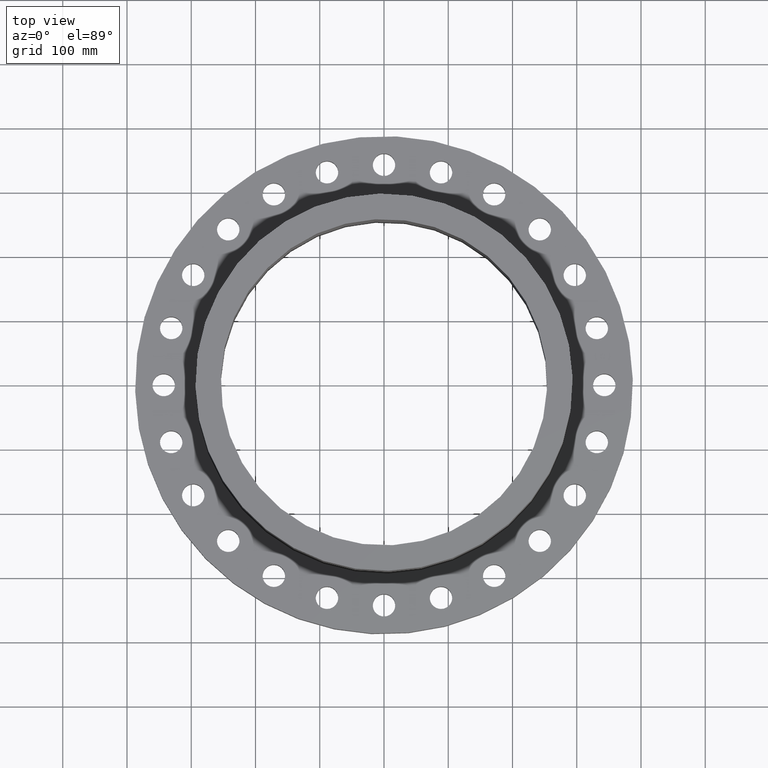
[diagram: clean part render]
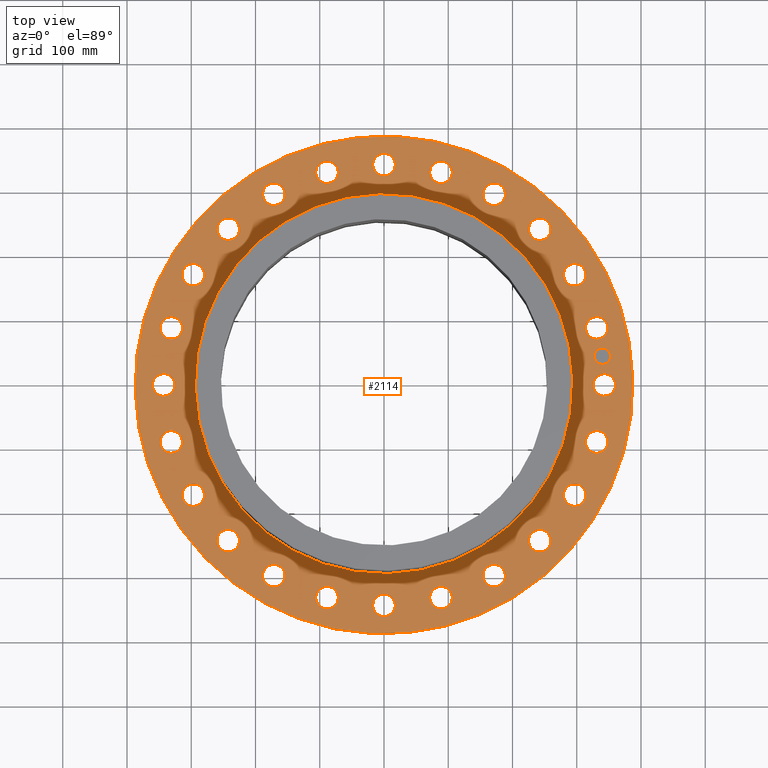
[diagram: same view with one face highlighted and labeled with its STEP entity id]
A machine part, top view. The second image highlights one B-rep face of the part: STEP entity #2114.
In plain terms, the highlighted planar face has unit normal (0, 0, -1).
Its self-contained STEP definition (entity closure, byte-faithful):
#51=AXIS2_PLACEMENT_3D('Circle Axis2P3D',#49,#50,$) ;
#542=AXIS2_PLACEMENT_3D('Circle Axis2P3D',#540,#541,$) ;
#566=AXIS2_PLACEMENT_3D('Circle Axis2P3D',#564,#565,$) ;
#585=AXIS2_PLACEMENT_3D('Circle Axis2P3D',#583,#584,$) ;
#602=AXIS2_PLACEMENT_3D('Circle Axis2P3D',#600,#601,$) ;
#637=AXIS2_PLACEMENT_3D('Circle Axis2P3D',#635,#636,$) ;
#1012=AXIS2_PLACEMENT_3D('Circle Axis2P3D',#1010,#1011,$) ;
#1031=AXIS2_PLACEMENT_3D('Circle Axis2P3D',#1029,#1030,$) ;
#1055=AXIS2_PLACEMENT_3D('Circle Axis2P3D',#1053,#1054,$) ;
#1074=AXIS2_PLACEMENT_3D('Circle Axis2P3D',#1072,#1073,$) ;
#1098=AXIS2_PLACEMENT_3D('Circle Axis2P3D',#1096,#1097,$) ;
#1117=AXIS2_PLACEMENT_3D('Circle Axis2P3D',#1115,#1116,$) ;
#1141=AXIS2_PLACEMENT_3D('Circle Axis2P3D',#1139,#1140,$) ;
#1160=AXIS2_PLACEMENT_3D('Circle Axis2P3D',#1158,#1159,$) ;
#1184=AXIS2_PLACEMENT_3D('Circle Axis2P3D',#1182,#1183,$) ;
#1203=AXIS2_PLACEMENT_3D('Circle Axis2P3D',#1201,#1202,$) ;
#1227=AXIS2_PLACEMENT_3D('Circle Axis2P3D',#1225,#1226,$) ;
#1246=AXIS2_PLACEMENT_3D('Circle Axis2P3D',#1244,#1245,$) ;
#1270=AXIS2_PLACEMENT_3D('Circle Axis2P3D',#1268,#1269,$) ;
#1289=AXIS2_PLACEMENT_3D('Circle Axis2P3D',#1287,#1288,$) ;
#1313=AXIS2_PLACEMENT_3D('Circle Axis2P3D',#1311,#1312,$) ;
#1332=AXIS2_PLACEMENT_3D('Circle Axis2P3D',#1330,#1331,$) ;
#1356=AXIS2_PLACEMENT_3D('Circle Axis2P3D',#1354,#1355,$) ;
#1375=AXIS2_PLACEMENT_3D('Circle Axis2P3D',#1373,#1374,$) ;
#1399=AXIS2_PLACEMENT_3D('Circle Axis2P3D',#1397,#1398,$) ;
#1418=AXIS2_PLACEMENT_3D('Circle Axis2P3D',#1416,#1417,$) ;
#1442=AXIS2_PLACEMENT_3D('Circle Axis2P3D',#1440,#1441,$) ;
#1461=AXIS2_PLACEMENT_3D('Circle Axis2P3D',#1459,#1460,$) ;
#1485=AXIS2_PLACEMENT_3D('Circle Axis2P3D',#1483,#1484,$) ;
#1504=AXIS2_PLACEMENT_3D('Circle Axis2P3D',#1502,#1503,$) ;
#1528=AXIS2_PLACEMENT_3D('Circle Axis2P3D',#1526,#1527,$) ;
#1547=AXIS2_PLACEMENT_3D('Circle Axis2P3D',#1545,#1546,$) ;
#1571=AXIS2_PLACEMENT_3D('Circle Axis2P3D',#1569,#1570,$) ;
#1590=AXIS2_PLACEMENT_3D('Circle Axis2P3D',#1588,#1589,$) ;
#1614=AXIS2_PLACEMENT_3D('Circle Axis2P3D',#1612,#1613,$) ;
#1633=AXIS2_PLACEMENT_3D('Circle Axis2P3D',#1631,#1632,$) ;
#1657=AXIS2_PLACEMENT_3D('Circle Axis2P3D',#1655,#1656,$) ;
#1676=AXIS2_PLACEMENT_3D('Circle Axis2P3D',#1674,#1675,$) ;
#1700=AXIS2_PLACEMENT_3D('Circle Axis2P3D',#1698,#1699,$) ;
#1719=AXIS2_PLACEMENT_3D('Circle Axis2P3D',#1717,#1718,$) ;
#1743=AXIS2_PLACEMENT_3D('Circle Axis2P3D',#1741,#1742,$) ;
#1762=AXIS2_PLACEMENT_3D('Circle Axis2P3D',#1760,#1761,$) ;
#1786=AXIS2_PLACEMENT_3D('Circle Axis2P3D',#1784,#1785,$) ;
#1805=AXIS2_PLACEMENT_3D('Circle Axis2P3D',#1803,#1804,$) ;
#1829=AXIS2_PLACEMENT_3D('Circle Axis2P3D',#1827,#1828,$) ;
#1848=AXIS2_PLACEMENT_3D('Circle Axis2P3D',#1846,#1847,$) ;
#1872=AXIS2_PLACEMENT_3D('Circle Axis2P3D',#1870,#1871,$) ;
#1891=AXIS2_PLACEMENT_3D('Circle Axis2P3D',#1889,#1890,$) ;
#1915=AXIS2_PLACEMENT_3D('Circle Axis2P3D',#1913,#1914,$) ;
#1934=AXIS2_PLACEMENT_3D('Circle Axis2P3D',#1932,#1933,$) ;
#1958=AXIS2_PLACEMENT_3D('Circle Axis2P3D',#1956,#1957,$) ;
#1977=AXIS2_PLACEMENT_3D('Circle Axis2P3D',#1975,#1976,$) ;
#1990=AXIS2_PLACEMENT_3D('Plane Axis2P3D',#1987,#1988,#1989) ;
#2098=AXIS2_PLACEMENT_3D('Circle Axis2P3D',#2096,#2097,$) ;
#2107=AXIS2_PLACEMENT_3D('Circle Axis2P3D',#2105,#2106,$) ;
#44=CARTESIAN_POINT('Vertex',(12.8944680323,-0.330803621638,2.43750000001)) ;
#49=CARTESIAN_POINT('Axis2P3D Location',(13.5000000001,0.,2.43750000001)) ;
#53=CARTESIAN_POINT('Vertex',(14.1055319678,0.330803621638,2.43750000001)) ;
#540=CARTESIAN_POINT('Axis2P3D Location',(13.5000000001,0.,2.43750000001)) ;
#561=CARTESIAN_POINT('Vertex',(-7.31123946374,-13.3831340689,2.43750000001)) ;
#564=CARTESIAN_POINT('Axis2P3D Location',(0.,0.,2.43750000001)) ;
#568=CARTESIAN_POINT('Vertex',(7.31123946374,13.3831340689,2.43750000001)) ;
#583=CARTESIAN_POINT('Axis2P3D Location',(0.,0.,2.43750000001)) ;
#600=CARTESIAN_POINT('Axis2P3D Location',(0.,0.,2.43750000001)) ;
#604=CARTESIAN_POINT('Vertex',(5.54215922629,10.1448544155,2.43750000001)) ;
#606=CARTESIAN_POINT('Vertex',(-5.54215922629,-10.1448544155,2.43750000001)) ;
#635=CARTESIAN_POINT('Axis2P3D Location',(0.,0.,2.43750000001)) ;
#1007=CARTESIAN_POINT('Vertex',(12.3694814112,-3.65686566481,2.43750000001)) ;
#1010=CARTESIAN_POINT('Axis2P3D Location',(13.039998655,-3.4940571089,2.43750000001)) ;
#1014=CARTESIAN_POINT('Vertex',(13.7105158987,-3.33124855299,2.43750000001)) ;
#1029=CARTESIAN_POINT('Axis2P3D Location',(13.039998655,-3.4940571089,2.43750000001)) ;
#1050=CARTESIAN_POINT('Vertex',(11.0015350735,-6.73371835618,2.43750000001)) ;
#1053=CARTESIAN_POINT('Axis2P3D Location',(11.6913429511,-6.75000000003,2.43750000001)) ;
#1057=CARTESIAN_POINT('Vertex',(12.3811508288,-6.76628164388,2.43750000001)) ;
#1072=CARTESIAN_POINT('Axis2P3D Location',(11.6913429511,-6.75000000003,2.43750000001)) ;
#1093=CARTESIAN_POINT('Vertex',(8.88385230136,-9.35167926957,2.43750000001)) ;
#1096=CARTESIAN_POINT('Axis2P3D Location',(9.54594154606,-9.54594154606,2.43750000001)) ;
#1100=CARTESIAN_POINT('Vertex',(10.2080307907,-9.74020382255,2.43750000001)) ;
#1115=CARTESIAN_POINT('Axis2P3D Location',(9.54594154606,-9.54594154606,2.43750000001)) ;
#1136=CARTESIAN_POINT('Vertex',(6.16074967617,-11.3323386951,2.43750000001)) ;
#1139=CARTESIAN_POINT('Axis2P3D Location',(6.75000000003,-11.6913429511,2.43750000001)) ;
#1143=CARTESIAN_POINT('Vertex',(7.33925032388,-12.0503472072,2.43750000001)) ;
#1158=CARTESIAN_POINT('Axis2P3D Location',(6.75000000003,-11.6913429511,2.43750000001)) ;
#1179=CARTESIAN_POINT('Vertex',(3.01780214167,-12.5407179662,2.43750000001)) ;
#1182=CARTESIAN_POINT('Axis2P3D Location',(3.4940571089,-13.039998655,2.43750000001)) ;
#1186=CARTESIAN_POINT('Vertex',(3.97031207613,-13.5392793437,2.43750000001)) ;
#1201=CARTESIAN_POINT('Axis2P3D Location',(3.4940571089,-13.039998655,2.43750000001)) ;
#1222=CARTESIAN_POINT('Vertex',(-0.330803621638,-12.8944680323,2.43750000001)) ;
#1225=CARTESIAN_POINT('Axis2P3D Location',(-1.41129328698E-015,-13.5000000001,2.43750000001)) ;
#1229=CARTESIAN_POINT('Vertex',(0.330803621638,-14.1055319678,2.43750000001)) ;
#1244=CARTESIAN_POINT('Axis2P3D Location',(-1.41129328698E-015,-13.5000000001,2.43750000001)) ;
#1265=CARTESIAN_POINT('Vertex',(-3.65686566481,-12.3694814112,2.43750000001)) ;
#1268=CARTESIAN_POINT('Axis2P3D Location',(-3.4940571089,-13.039998655,2.43750000001)) ;
#1272=CARTESIAN_POINT('Vertex',(-3.33124855299,-13.7105158987,2.43750000001)) ;
#1287=CARTESIAN_POINT('Axis2P3D Location',(-3.4940571089,-13.039998655,2.43750000001)) ;
#1308=CARTESIAN_POINT('Vertex',(-6.73371835618,-11.0015350735,2.43750000001)) ;
#1311=CARTESIAN_POINT('Axis2P3D Location',(-6.75000000003,-11.6913429511,2.43750000001)) ;
#1315=CARTESIAN_POINT('Vertex',(-6.76628164388,-12.3811508288,2.43750000001)) ;
#1330=CARTESIAN_POINT('Axis2P3D Location',(-6.75000000003,-11.6913429511,2.43750000001)) ;
#1351=CARTESIAN_POINT('Vertex',(-9.35167926957,-8.88385230136,2.43750000001)) ;
#1354=CARTESIAN_POINT('Axis2P3D Location',(-9.54594154606,-9.54594154606,2.43750000001)) ;
#1358=CARTESIAN_POINT('Vertex',(-9.74020382255,-10.2080307907,2.43750000001)) ;
#1373=CARTESIAN_POINT('Axis2P3D Location',(-9.54594154606,-9.54594154606,2.43750000001)) ;
#1394=CARTESIAN_POINT('Vertex',(-11.3323386951,-6.16074967617,2.43750000001)) ;
#1397=CARTESIAN_POINT('Axis2P3D Location',(-11.6913429511,-6.75000000003,2.43750000001)) ;
#1401=CARTESIAN_POINT('Vertex',(-12.0503472072,-7.33925032388,2.43750000001)) ;
#1416=CARTESIAN_POINT('Axis2P3D Location',(-11.6913429511,-6.75000000003,2.43750000001)) ;
#1437=CARTESIAN_POINT('Vertex',(-12.5407179662,-3.01780214167,2.43750000001)) ;
#1440=CARTESIAN_POINT('Axis2P3D Location',(-13.039998655,-3.4940571089,2.43750000001)) ;
#1444=CARTESIAN_POINT('Vertex',(-13.5392793437,-3.97031207613,2.43750000001)) ;
#1459=CARTESIAN_POINT('Axis2P3D Location',(-13.039998655,-3.4940571089,2.43750000001)) ;
#1480=CARTESIAN_POINT('Vertex',(-12.8944680323,0.330803621638,2.43750000001)) ;
#1483=CARTESIAN_POINT('Axis2P3D Location',(-13.5000000001,-1.65327317886E-015,2.43750000001)) ;
#1487=CARTESIAN_POINT('Vertex',(-14.1055319678,-0.330803621638,2.43750000001)) ;
#1502=CARTESIAN_POINT('Axis2P3D Location',(-13.5000000001,-1.65327317886E-015,2.43750000001)) ;
#1523=CARTESIAN_POINT('Vertex',(-12.3694814112,3.65686566481,2.43750000001)) ;
#1526=CARTESIAN_POINT('Axis2P3D Location',(-13.039998655,3.4940571089,2.43750000001)) ;
#1530=CARTESIAN_POINT('Vertex',(-13.7105158987,3.33124855299,2.43750000001)) ;
#1545=CARTESIAN_POINT('Axis2P3D Location',(-13.039998655,3.4940571089,2.43750000001)) ;
#1566=CARTESIAN_POINT('Vertex',(-11.0015350735,6.73371835618,2.43750000001)) ;
#1569=CARTESIAN_POINT('Axis2P3D Location',(-11.6913429511,6.75000000003,2.43750000001)) ;
#1573=CARTESIAN_POINT('Vertex',(-12.3811508288,6.76628164388,2.43750000001)) ;
#1588=CARTESIAN_POINT('Axis2P3D Location',(-11.6913429511,6.75000000003,2.43750000001)) ;
#1609=CARTESIAN_POINT('Vertex',(-8.88385230136,9.35167926957,2.43750000001)) ;
#1612=CARTESIAN_POINT('Axis2P3D Location',(-9.54594154606,9.54594154606,2.43750000001)) ;
#1616=CARTESIAN_POINT('Vertex',(-10.2080307907,9.74020382255,2.43750000001)) ;
#1631=CARTESIAN_POINT('Axis2P3D Location',(-9.54594154606,9.54594154606,2.43750000001)) ;
#1652=CARTESIAN_POINT('Vertex',(-6.16074967617,11.3323386951,2.43750000001)) ;
#1655=CARTESIAN_POINT('Axis2P3D Location',(-6.75000000003,11.6913429511,2.43750000001)) ;
#1659=CARTESIAN_POINT('Vertex',(-7.33925032388,12.0503472072,2.43750000001)) ;
#1674=CARTESIAN_POINT('Axis2P3D Location',(-6.75000000003,11.6913429511,2.43750000001)) ;
#1695=CARTESIAN_POINT('Vertex',(-3.01780214167,12.5407179662,2.43750000001)) ;
#1698=CARTESIAN_POINT('Axis2P3D Location',(-3.4940571089,13.039998655,2.43750000001)) ;
#1702=CARTESIAN_POINT('Vertex',(-3.97031207613,13.5392793437,2.43750000001)) ;
#1717=CARTESIAN_POINT('Axis2P3D Location',(-3.4940571089,13.039998655,2.43750000001)) ;
#1738=CARTESIAN_POINT('Vertex',(0.330803621638,12.8944680323,2.43750000001)) ;
#1741=CARTESIAN_POINT('Axis2P3D Location',(-2.47990976828E-015,13.5000000001,2.43750000001)) ;
#1745=CARTESIAN_POINT('Vertex',(-0.330803621638,14.1055319678,2.43750000001)) ;
#1760=CARTESIAN_POINT('Axis2P3D Location',(-2.47990976828E-015,13.5000000001,2.43750000001)) ;
#1781=CARTESIAN_POINT('Vertex',(3.65686566481,12.3694814112,2.43750000001)) ;
#1784=CARTESIAN_POINT('Axis2P3D Location',(3.4940571089,13.039998655,2.43750000001)) ;
#1788=CARTESIAN_POINT('Vertex',(3.33124855299,13.7105158987,2.43750000001)) ;
#1803=CARTESIAN_POINT('Axis2P3D Location',(3.4940571089,13.039998655,2.43750000001)) ;
#1824=CARTESIAN_POINT('Vertex',(6.73371835618,11.0015350735,2.43750000001)) ;
#1827=CARTESIAN_POINT('Axis2P3D Location',(6.75000000003,11.6913429511,2.43750000001)) ;
#1831=CARTESIAN_POINT('Vertex',(6.76628164388,12.3811508288,2.43750000001)) ;
#1846=CARTESIAN_POINT('Axis2P3D Location',(6.75000000003,11.6913429511,2.43750000001)) ;
#1867=CARTESIAN_POINT('Vertex',(9.35167926957,8.88385230136,2.43750000001)) ;
#1870=CARTESIAN_POINT('Axis2P3D Location',(9.54594154606,9.54594154606,2.43750000001)) ;
#1874=CARTESIAN_POINT('Vertex',(9.74020382255,10.2080307907,2.43750000001)) ;
#1889=CARTESIAN_POINT('Axis2P3D Location',(9.54594154606,9.54594154606,2.43750000001)) ;
#1910=CARTESIAN_POINT('Vertex',(11.3323386951,6.16074967617,2.43750000001)) ;
#1913=CARTESIAN_POINT('Axis2P3D Location',(11.6913429511,6.75000000003,2.43750000001)) ;
#1917=CARTESIAN_POINT('Vertex',(12.0503472072,7.33925032388,2.43750000001)) ;
#1932=CARTESIAN_POINT('Axis2P3D Location',(11.6913429511,6.75000000003,2.43750000001)) ;
#1953=CARTESIAN_POINT('Vertex',(12.5407179662,3.01780214167,2.43750000001)) ;
#1956=CARTESIAN_POINT('Axis2P3D Location',(13.039998655,3.4940571089,2.43750000001)) ;
#1960=CARTESIAN_POINT('Vertex',(13.5392793437,3.97031207613,2.43750000001)) ;
#1975=CARTESIAN_POINT('Axis2P3D Location',(13.039998655,3.4940571089,2.43750000001)) ;
#1987=CARTESIAN_POINT('Axis2P3D Location',(0.,15.2500000001,2.43750000001)) ;
#2096=CARTESIAN_POINT('Axis2P3D Location',(13.3845056286,1.76210359498,2.43750000001)) ;
#2100=CARTESIAN_POINT('Vertex',(13.4497687241,1.26638116925,2.43750000001)) ;
#2102=CARTESIAN_POINT('Vertex',(13.3192425331,2.25782602071,2.43750000001)) ;
#2105=CARTESIAN_POINT('Axis2P3D Location',(13.3845056286,1.76210359498,2.43750000001)) ;
#50=DIRECTION('Axis2P3D Direction',(0.,-0.,0.0393700787402)) ;
#541=DIRECTION('Axis2P3D Direction',(0.,-0.,0.0393700787402)) ;
#565=DIRECTION('Axis2P3D Direction',(0.,0.,-0.0393700787402)) ;
#584=DIRECTION('Axis2P3D Direction',(0.,0.,-0.0393700787402)) ;
#601=DIRECTION('Axis2P3D Direction',(0.,0.,-0.0393700787402)) ;
#636=DIRECTION('Axis2P3D Direction',(0.,0.,-0.0393700787402)) ;
#1011=DIRECTION('Axis2P3D Direction',(-0.,0.,0.0393700787402)) ;
#1030=DIRECTION('Axis2P3D Direction',(-0.,0.,0.0393700787402)) ;
#1054=DIRECTION('Axis2P3D Direction',(-0.,0.,0.0393700787402)) ;
#1073=DIRECTION('Axis2P3D Direction',(-0.,0.,0.0393700787402)) ;
#1097=DIRECTION('Axis2P3D Direction',(-0.,0.,0.0393700787402)) ;
#1116=DIRECTION('Axis2P3D Direction',(-0.,0.,0.0393700787402)) ;
#1140=DIRECTION('Axis2P3D Direction',(-0.,0.,0.0393700787402)) ;
#1159=DIRECTION('Axis2P3D Direction',(-0.,0.,0.0393700787402)) ;
#1183=DIRECTION('Axis2P3D Direction',(-0.,0.,0.0393700787402)) ;
#1202=DIRECTION('Axis2P3D Direction',(-0.,0.,0.0393700787402)) ;
#1226=DIRECTION('Axis2P3D Direction',(-0.,0.,0.0393700787402)) ;
#1245=DIRECTION('Axis2P3D Direction',(-0.,0.,0.0393700787402)) ;
#1269=DIRECTION('Axis2P3D Direction',(0.,0.,0.0393700787402)) ;
#1288=DIRECTION('Axis2P3D Direction',(0.,0.,0.0393700787402)) ;
#1312=DIRECTION('Axis2P3D Direction',(0.,0.,0.0393700787402)) ;
#1331=DIRECTION('Axis2P3D Direction',(0.,0.,0.0393700787402)) ;
#1355=DIRECTION('Axis2P3D Direction',(0.,0.,0.0393700787402)) ;
#1374=DIRECTION('Axis2P3D Direction',(0.,0.,0.0393700787402)) ;
#1398=DIRECTION('Axis2P3D Direction',(0.,0.,0.0393700787402)) ;
#1417=DIRECTION('Axis2P3D Direction',(0.,0.,0.0393700787402)) ;
#1441=DIRECTION('Axis2P3D Direction',(0.,0.,0.0393700787402)) ;
#1460=DIRECTION('Axis2P3D Direction',(0.,0.,0.0393700787402)) ;
#1484=DIRECTION('Axis2P3D Direction',(0.,0.,0.0393700787402)) ;
#1503=DIRECTION('Axis2P3D Direction',(0.,0.,0.0393700787402)) ;
#1527=DIRECTION('Axis2P3D Direction',(0.,0.,0.0393700787402)) ;
#1546=DIRECTION('Axis2P3D Direction',(0.,0.,0.0393700787402)) ;
#1570=DIRECTION('Axis2P3D Direction',(0.,0.,0.0393700787402)) ;
#1589=DIRECTION('Axis2P3D Direction',(0.,0.,0.0393700787402)) ;
#1613=DIRECTION('Axis2P3D Direction',(0.,0.,0.0393700787402)) ;
#1632=DIRECTION('Axis2P3D Direction',(0.,0.,0.0393700787402)) ;
#1656=DIRECTION('Axis2P3D Direction',(0.,0.,0.0393700787402)) ;
#1675=DIRECTION('Axis2P3D Direction',(0.,0.,0.0393700787402)) ;
#1699=DIRECTION('Axis2P3D Direction',(0.,0.,0.0393700787402)) ;
#1718=DIRECTION('Axis2P3D Direction',(0.,0.,0.0393700787402)) ;
#1742=DIRECTION('Axis2P3D Direction',(0.,0.,0.0393700787402)) ;
#1761=DIRECTION('Axis2P3D Direction',(0.,0.,0.0393700787402)) ;
#1785=DIRECTION('Axis2P3D Direction',(0.,-0.,0.0393700787402)) ;
#1804=DIRECTION('Axis2P3D Direction',(0.,-0.,0.0393700787402)) ;
#1828=DIRECTION('Axis2P3D Direction',(0.,-0.,0.0393700787402)) ;
#1847=DIRECTION('Axis2P3D Direction',(0.,-0.,0.0393700787402)) ;
#1871=DIRECTION('Axis2P3D Direction',(0.,-0.,0.0393700787402)) ;
#1890=DIRECTION('Axis2P3D Direction',(0.,-0.,0.0393700787402)) ;
#1914=DIRECTION('Axis2P3D Direction',(0.,-0.,0.0393700787402)) ;
#1933=DIRECTION('Axis2P3D Direction',(0.,-0.,0.0393700787402)) ;
#1957=DIRECTION('Axis2P3D Direction',(0.,-0.,0.0393700787402)) ;
#1976=DIRECTION('Axis2P3D Direction',(0.,-0.,0.0393700787402)) ;
#1988=DIRECTION('Axis2P3D Direction',(0.,0.,-0.0393700787402)) ;
#1989=DIRECTION('Axis2P3D XDirection',(0.0393700787402,0.,0.)) ;
#2097=DIRECTION('Axis2P3D Direction',(0.,0.,-0.0393700787402)) ;
#2106=DIRECTION('Axis2P3D Direction',(0.,0.,-0.0393700787402)) ;
#1993=ORIENTED_EDGE('',*,*,#587,.F.) ;
#1994=ORIENTED_EDGE('',*,*,#570,.F.) ;
#1997=ORIENTED_EDGE('',*,*,#55,.T.) ;
#1998=ORIENTED_EDGE('',*,*,#544,.T.) ;
#2001=ORIENTED_EDGE('',*,*,#639,.T.) ;
#2002=ORIENTED_EDGE('',*,*,#608,.T.) ;
#2005=ORIENTED_EDGE('',*,*,#1033,.T.) ;
#2006=ORIENTED_EDGE('',*,*,#1016,.T.) ;
#2009=ORIENTED_EDGE('',*,*,#1076,.T.) ;
#2010=ORIENTED_EDGE('',*,*,#1059,.T.) ;
#2013=ORIENTED_EDGE('',*,*,#1119,.T.) ;
#2014=ORIENTED_EDGE('',*,*,#1102,.T.) ;
#2017=ORIENTED_EDGE('',*,*,#1162,.T.) ;
#2018=ORIENTED_EDGE('',*,*,#1145,.T.) ;
#2021=ORIENTED_EDGE('',*,*,#1205,.T.) ;
#2022=ORIENTED_EDGE('',*,*,#1188,.T.) ;
#2025=ORIENTED_EDGE('',*,*,#1248,.T.) ;
#2026=ORIENTED_EDGE('',*,*,#1231,.T.) ;
#2029=ORIENTED_EDGE('',*,*,#1291,.T.) ;
#2030=ORIENTED_EDGE('',*,*,#1274,.T.) ;
#2033=ORIENTED_EDGE('',*,*,#1334,.T.) ;
#2034=ORIENTED_EDGE('',*,*,#1317,.T.) ;
#2037=ORIENTED_EDGE('',*,*,#1377,.T.) ;
#2038=ORIENTED_EDGE('',*,*,#1360,.T.) ;
#2041=ORIENTED_EDGE('',*,*,#1420,.T.) ;
#2042=ORIENTED_EDGE('',*,*,#1403,.T.) ;
#2045=ORIENTED_EDGE('',*,*,#1463,.T.) ;
#2046=ORIENTED_EDGE('',*,*,#1446,.T.) ;
#2049=ORIENTED_EDGE('',*,*,#1506,.T.) ;
#2050=ORIENTED_EDGE('',*,*,#1489,.T.) ;
#2053=ORIENTED_EDGE('',*,*,#1549,.T.) ;
#2054=ORIENTED_EDGE('',*,*,#1532,.T.) ;
#2057=ORIENTED_EDGE('',*,*,#1592,.T.) ;
#2058=ORIENTED_EDGE('',*,*,#1575,.T.) ;
#2061=ORIENTED_EDGE('',*,*,#1635,.T.) ;
#2062=ORIENTED_EDGE('',*,*,#1618,.T.) ;
#2065=ORIENTED_EDGE('',*,*,#1678,.T.) ;
#2066=ORIENTED_EDGE('',*,*,#1661,.T.) ;
#2069=ORIENTED_EDGE('',*,*,#1721,.T.) ;
#2070=ORIENTED_EDGE('',*,*,#1704,.T.) ;
#2073=ORIENTED_EDGE('',*,*,#1764,.T.) ;
#2074=ORIENTED_EDGE('',*,*,#1747,.T.) ;
#2077=ORIENTED_EDGE('',*,*,#1807,.T.) ;
#2078=ORIENTED_EDGE('',*,*,#1790,.T.) ;
#2081=ORIENTED_EDGE('',*,*,#1850,.T.) ;
#2082=ORIENTED_EDGE('',*,*,#1833,.T.) ;
#2085=ORIENTED_EDGE('',*,*,#1893,.T.) ;
#2086=ORIENTED_EDGE('',*,*,#1876,.T.) ;
#2089=ORIENTED_EDGE('',*,*,#1936,.T.) ;
#2090=ORIENTED_EDGE('',*,*,#1919,.T.) ;
#2093=ORIENTED_EDGE('',*,*,#1979,.T.) ;
#2094=ORIENTED_EDGE('',*,*,#1962,.T.) ;
#2111=ORIENTED_EDGE('',*,*,#2104,.F.) ;
#2112=ORIENTED_EDGE('',*,*,#2109,.F.) ;
#1999=FACE_BOUND('',#1996,.T.) ;
#2003=FACE_BOUND('',#2000,.T.) ;
#2007=FACE_BOUND('',#2004,.T.) ;
#2011=FACE_BOUND('',#2008,.T.) ;
#2015=FACE_BOUND('',#2012,.T.) ;
#2019=FACE_BOUND('',#2016,.T.) ;
#2023=FACE_BOUND('',#2020,.T.) ;
#2027=FACE_BOUND('',#2024,.T.) ;
#2031=FACE_BOUND('',#2028,.T.) ;
#2035=FACE_BOUND('',#2032,.T.) ;
#2039=FACE_BOUND('',#2036,.T.) ;
#2043=FACE_BOUND('',#2040,.T.) ;
#2047=FACE_BOUND('',#2044,.T.) ;
#2051=FACE_BOUND('',#2048,.T.) ;
#2055=FACE_BOUND('',#2052,.T.) ;
#2059=FACE_BOUND('',#2056,.T.) ;
#2063=FACE_BOUND('',#2060,.T.) ;
#2067=FACE_BOUND('',#2064,.T.) ;
#2071=FACE_BOUND('',#2068,.T.) ;
#2075=FACE_BOUND('',#2072,.T.) ;
#2079=FACE_BOUND('',#2076,.T.) ;
#2083=FACE_BOUND('',#2080,.T.) ;
#2087=FACE_BOUND('',#2084,.T.) ;
#2091=FACE_BOUND('',#2088,.T.) ;
#2095=FACE_BOUND('',#2092,.T.) ;
#2113=FACE_BOUND('',#2110,.T.) ;
#2114=ADVANCED_FACE('PartBody',(#1995,#1999,#2003,#2007,#2011,#2015,#2019,#2023,#2027,#2031,#2035,#2039,#2043,#2047,#2051,#2055,#2059,#2063,#2067,#2071,#2075,#2079,#2083,#2087,#2091,#2095,#2113),#1991,.F.) ;
#52=CIRCLE('generated circle',#51,0.690000000003) ;
#543=CIRCLE('generated circle',#542,0.690000000003) ;
#567=CIRCLE('generated circle',#566,15.2500000001) ;
#586=CIRCLE('generated circle',#585,15.2500000001) ;
#603=CIRCLE('generated circle',#602,11.56) ;
#638=CIRCLE('generated circle',#637,11.56) ;
#1013=CIRCLE('generated circle',#1012,0.690000000003) ;
#1032=CIRCLE('generated circle',#1031,0.690000000003) ;
#1056=CIRCLE('generated circle',#1055,0.690000000003) ;
#1075=CIRCLE('generated circle',#1074,0.690000000003) ;
#1099=CIRCLE('generated circle',#1098,0.690000000003) ;
#1118=CIRCLE('generated circle',#1117,0.690000000003) ;
#1142=CIRCLE('generated circle',#1141,0.690000000003) ;
#1161=CIRCLE('generated circle',#1160,0.690000000003) ;
#1185=CIRCLE('generated circle',#1184,0.690000000003) ;
#1204=CIRCLE('generated circle',#1203,0.690000000003) ;
#1228=CIRCLE('generated circle',#1227,0.690000000003) ;
#1247=CIRCLE('generated circle',#1246,0.690000000003) ;
#1271=CIRCLE('generated circle',#1270,0.690000000003) ;
#1290=CIRCLE('generated circle',#1289,0.690000000003) ;
#1314=CIRCLE('generated circle',#1313,0.690000000003) ;
#1333=CIRCLE('generated circle',#1332,0.690000000003) ;
#1357=CIRCLE('generated circle',#1356,0.690000000003) ;
#1376=CIRCLE('generated circle',#1375,0.690000000003) ;
#1400=CIRCLE('generated circle',#1399,0.690000000003) ;
#1419=CIRCLE('generated circle',#1418,0.690000000003) ;
#1443=CIRCLE('generated circle',#1442,0.690000000003) ;
#1462=CIRCLE('generated circle',#1461,0.690000000003) ;
#1486=CIRCLE('generated circle',#1485,0.690000000003) ;
#1505=CIRCLE('generated circle',#1504,0.690000000003) ;
#1529=CIRCLE('generated circle',#1528,0.690000000003) ;
#1548=CIRCLE('generated circle',#1547,0.690000000003) ;
#1572=CIRCLE('generated circle',#1571,0.690000000003) ;
#1591=CIRCLE('generated circle',#1590,0.690000000003) ;
#1615=CIRCLE('generated circle',#1614,0.690000000003) ;
#1634=CIRCLE('generated circle',#1633,0.690000000003) ;
#1658=CIRCLE('generated circle',#1657,0.690000000003) ;
#1677=CIRCLE('generated circle',#1676,0.690000000003) ;
#1701=CIRCLE('generated circle',#1700,0.690000000003) ;
#1720=CIRCLE('generated circle',#1719,0.690000000003) ;
#1744=CIRCLE('generated circle',#1743,0.690000000003) ;
#1763=CIRCLE('generated circle',#1762,0.690000000003) ;
#1787=CIRCLE('generated circle',#1786,0.690000000003) ;
#1806=CIRCLE('generated circle',#1805,0.690000000003) ;
#1830=CIRCLE('generated circle',#1829,0.690000000003) ;
#1849=CIRCLE('generated circle',#1848,0.690000000003) ;
#1873=CIRCLE('generated circle',#1872,0.690000000003) ;
#1892=CIRCLE('generated circle',#1891,0.690000000003) ;
#1916=CIRCLE('generated circle',#1915,0.690000000003) ;
#1935=CIRCLE('generated circle',#1934,0.690000000003) ;
#1959=CIRCLE('generated circle',#1958,0.690000000003) ;
#1978=CIRCLE('generated circle',#1977,0.690000000003) ;
#2099=CIRCLE('generated circle',#2098,0.499999995002) ;
#2108=CIRCLE('generated circle',#2107,0.499999995002) ;
#55=EDGE_CURVE('',#54,#45,#52,.F.) ;
#544=EDGE_CURVE('',#45,#54,#543,.F.) ;
#570=EDGE_CURVE('',#562,#569,#567,.T.) ;
#587=EDGE_CURVE('',#569,#562,#586,.T.) ;
#608=EDGE_CURVE('',#605,#607,#603,.T.) ;
#639=EDGE_CURVE('',#607,#605,#638,.T.) ;
#1016=EDGE_CURVE('',#1015,#1008,#1013,.F.) ;
#1033=EDGE_CURVE('',#1008,#1015,#1032,.F.) ;
#1059=EDGE_CURVE('',#1058,#1051,#1056,.F.) ;
#1076=EDGE_CURVE('',#1051,#1058,#1075,.F.) ;
#1102=EDGE_CURVE('',#1101,#1094,#1099,.F.) ;
#1119=EDGE_CURVE('',#1094,#1101,#1118,.F.) ;
#1145=EDGE_CURVE('',#1144,#1137,#1142,.F.) ;
#1162=EDGE_CURVE('',#1137,#1144,#1161,.F.) ;
#1188=EDGE_CURVE('',#1187,#1180,#1185,.F.) ;
#1205=EDGE_CURVE('',#1180,#1187,#1204,.F.) ;
#1231=EDGE_CURVE('',#1230,#1223,#1228,.F.) ;
#1248=EDGE_CURVE('',#1223,#1230,#1247,.F.) ;
#1274=EDGE_CURVE('',#1273,#1266,#1271,.F.) ;
#1291=EDGE_CURVE('',#1266,#1273,#1290,.F.) ;
#1317=EDGE_CURVE('',#1316,#1309,#1314,.F.) ;
#1334=EDGE_CURVE('',#1309,#1316,#1333,.F.) ;
#1360=EDGE_CURVE('',#1359,#1352,#1357,.F.) ;
#1377=EDGE_CURVE('',#1352,#1359,#1376,.F.) ;
#1403=EDGE_CURVE('',#1402,#1395,#1400,.F.) ;
#1420=EDGE_CURVE('',#1395,#1402,#1419,.F.) ;
#1446=EDGE_CURVE('',#1445,#1438,#1443,.F.) ;
#1463=EDGE_CURVE('',#1438,#1445,#1462,.F.) ;
#1489=EDGE_CURVE('',#1488,#1481,#1486,.F.) ;
#1506=EDGE_CURVE('',#1481,#1488,#1505,.F.) ;
#1532=EDGE_CURVE('',#1531,#1524,#1529,.F.) ;
#1549=EDGE_CURVE('',#1524,#1531,#1548,.F.) ;
#1575=EDGE_CURVE('',#1574,#1567,#1572,.F.) ;
#1592=EDGE_CURVE('',#1567,#1574,#1591,.F.) ;
#1618=EDGE_CURVE('',#1617,#1610,#1615,.F.) ;
#1635=EDGE_CURVE('',#1610,#1617,#1634,.F.) ;
#1661=EDGE_CURVE('',#1660,#1653,#1658,.F.) ;
#1678=EDGE_CURVE('',#1653,#1660,#1677,.F.) ;
#1704=EDGE_CURVE('',#1703,#1696,#1701,.F.) ;
#1721=EDGE_CURVE('',#1696,#1703,#1720,.F.) ;
#1747=EDGE_CURVE('',#1746,#1739,#1744,.F.) ;
#1764=EDGE_CURVE('',#1739,#1746,#1763,.F.) ;
#1790=EDGE_CURVE('',#1789,#1782,#1787,.F.) ;
#1807=EDGE_CURVE('',#1782,#1789,#1806,.F.) ;
#1833=EDGE_CURVE('',#1832,#1825,#1830,.F.) ;
#1850=EDGE_CURVE('',#1825,#1832,#1849,.F.) ;
#1876=EDGE_CURVE('',#1875,#1868,#1873,.F.) ;
#1893=EDGE_CURVE('',#1868,#1875,#1892,.F.) ;
#1919=EDGE_CURVE('',#1918,#1911,#1916,.F.) ;
#1936=EDGE_CURVE('',#1911,#1918,#1935,.F.) ;
#1962=EDGE_CURVE('',#1961,#1954,#1959,.F.) ;
#1979=EDGE_CURVE('',#1954,#1961,#1978,.F.) ;
#2104=EDGE_CURVE('',#2101,#2103,#2099,.F.) ;
#2109=EDGE_CURVE('',#2103,#2101,#2108,.F.) ;
#1992=EDGE_LOOP('',(#1993,#1994)) ;
#1996=EDGE_LOOP('',(#1997,#1998)) ;
#2000=EDGE_LOOP('',(#2001,#2002)) ;
#2004=EDGE_LOOP('',(#2005,#2006)) ;
#2008=EDGE_LOOP('',(#2009,#2010)) ;
#2012=EDGE_LOOP('',(#2013,#2014)) ;
#2016=EDGE_LOOP('',(#2017,#2018)) ;
#2020=EDGE_LOOP('',(#2021,#2022)) ;
#2024=EDGE_LOOP('',(#2025,#2026)) ;
#2028=EDGE_LOOP('',(#2029,#2030)) ;
#2032=EDGE_LOOP('',(#2033,#2034)) ;
#2036=EDGE_LOOP('',(#2037,#2038)) ;
#2040=EDGE_LOOP('',(#2041,#2042)) ;
#2044=EDGE_LOOP('',(#2045,#2046)) ;
#2048=EDGE_LOOP('',(#2049,#2050)) ;
#2052=EDGE_LOOP('',(#2053,#2054)) ;
#2056=EDGE_LOOP('',(#2057,#2058)) ;
#2060=EDGE_LOOP('',(#2061,#2062)) ;
#2064=EDGE_LOOP('',(#2065,#2066)) ;
#2068=EDGE_LOOP('',(#2069,#2070)) ;
#2072=EDGE_LOOP('',(#2073,#2074)) ;
#2076=EDGE_LOOP('',(#2077,#2078)) ;
#2080=EDGE_LOOP('',(#2081,#2082)) ;
#2084=EDGE_LOOP('',(#2085,#2086)) ;
#2088=EDGE_LOOP('',(#2089,#2090)) ;
#2092=EDGE_LOOP('',(#2093,#2094)) ;
#2110=EDGE_LOOP('',(#2111,#2112)) ;
#1995=FACE_OUTER_BOUND('',#1992,.T.) ;
#1991=PLANE('',#1990) ;
#45=VERTEX_POINT('',#44) ;
#54=VERTEX_POINT('',#53) ;
#562=VERTEX_POINT('',#561) ;
#569=VERTEX_POINT('',#568) ;
#605=VERTEX_POINT('',#604) ;
#607=VERTEX_POINT('',#606) ;
#1008=VERTEX_POINT('',#1007) ;
#1015=VERTEX_POINT('',#1014) ;
#1051=VERTEX_POINT('',#1050) ;
#1058=VERTEX_POINT('',#1057) ;
#1094=VERTEX_POINT('',#1093) ;
#1101=VERTEX_POINT('',#1100) ;
#1137=VERTEX_POINT('',#1136) ;
#1144=VERTEX_POINT('',#1143) ;
#1180=VERTEX_POINT('',#1179) ;
#1187=VERTEX_POINT('',#1186) ;
#1223=VERTEX_POINT('',#1222) ;
#1230=VERTEX_POINT('',#1229) ;
#1266=VERTEX_POINT('',#1265) ;
#1273=VERTEX_POINT('',#1272) ;
#1309=VERTEX_POINT('',#1308) ;
#1316=VERTEX_POINT('',#1315) ;
#1352=VERTEX_POINT('',#1351) ;
#1359=VERTEX_POINT('',#1358) ;
#1395=VERTEX_POINT('',#1394) ;
#1402=VERTEX_POINT('',#1401) ;
#1438=VERTEX_POINT('',#1437) ;
#1445=VERTEX_POINT('',#1444) ;
#1481=VERTEX_POINT('',#1480) ;
#1488=VERTEX_POINT('',#1487) ;
#1524=VERTEX_POINT('',#1523) ;
#1531=VERTEX_POINT('',#1530) ;
#1567=VERTEX_POINT('',#1566) ;
#1574=VERTEX_POINT('',#1573) ;
#1610=VERTEX_POINT('',#1609) ;
#1617=VERTEX_POINT('',#1616) ;
#1653=VERTEX_POINT('',#1652) ;
#1660=VERTEX_POINT('',#1659) ;
#1696=VERTEX_POINT('',#1695) ;
#1703=VERTEX_POINT('',#1702) ;
#1739=VERTEX_POINT('',#1738) ;
#1746=VERTEX_POINT('',#1745) ;
#1782=VERTEX_POINT('',#1781) ;
#1789=VERTEX_POINT('',#1788) ;
#1825=VERTEX_POINT('',#1824) ;
#1832=VERTEX_POINT('',#1831) ;
#1868=VERTEX_POINT('',#1867) ;
#1875=VERTEX_POINT('',#1874) ;
#1911=VERTEX_POINT('',#1910) ;
#1918=VERTEX_POINT('',#1917) ;
#1954=VERTEX_POINT('',#1953) ;
#1961=VERTEX_POINT('',#1960) ;
#2101=VERTEX_POINT('',#2100) ;
#2103=VERTEX_POINT('',#2102) ;